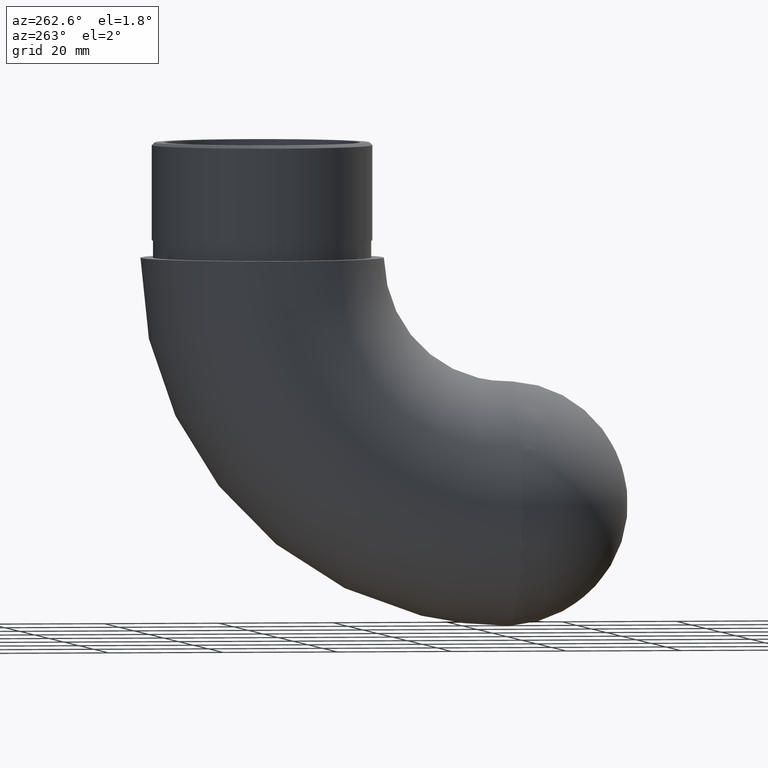
[diagram: clean part render]
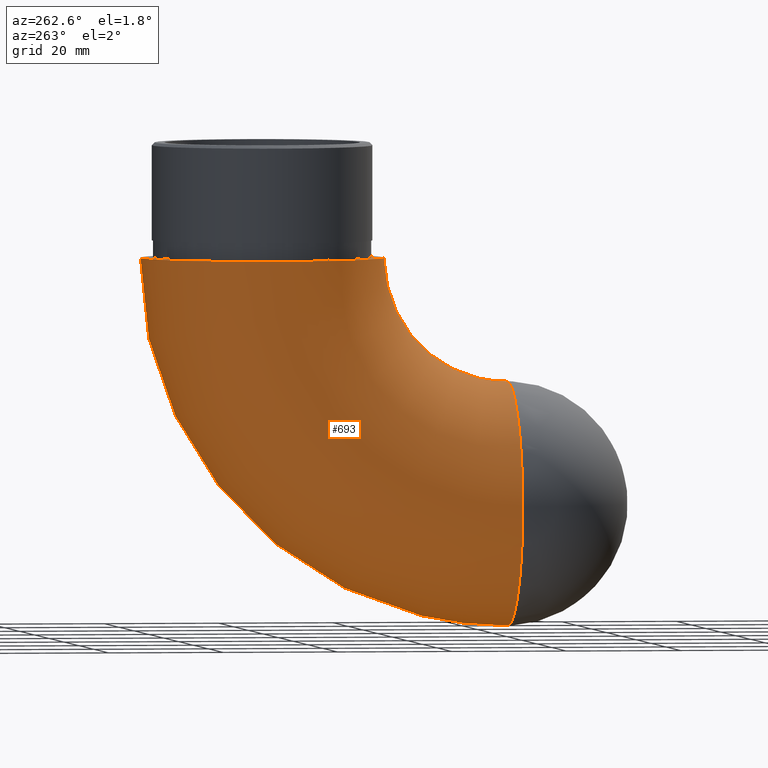
[diagram: same view with one face highlighted and labeled with its STEP entity id]
A machine part, auxiliary view. The second image highlights one B-rep face of the part: STEP entity #693.
In plain terms, the highlighted toroidal blend (fillet) surface has major radius 42.8 mm and minor (blend) radius 21.2 mm.
Its self-contained STEP definition (entity closure, byte-faithful):
#224 = AXIS2_PLACEMENT_3D ( 'NONE', #6626, #11305, #1149 ) ;
#251 = VERTEX_POINT ( 'NONE', #6071 ) ;
#364 = DIRECTION ( 'NONE',  ( 0.0000000000000000000, -1.000000000000000000, -1.608122649676636600E-016 ) ) ;
#522 = EDGE_LOOP ( 'NONE', ( #3808 ) ) ;
#693 = ADVANCED_FACE ( 'NONE', ( #8839, #5685 ), #2860, .T. ) ;
#924 = ORIENTED_EDGE ( 'NONE', *, *, #6215, .T. ) ;
#1149 = DIRECTION ( 'NONE',  ( 0.0000000000000000000, 0.0000000000000000000, 1.000000000000000000 ) ) ;
#2860 = TOROIDAL_SURFACE ( 'NONE', #224, 42.80000000000000400, 21.19999999999999900 ) ;
#3418 = CARTESIAN_POINT ( 'NONE',  ( 0.0000000000000000000, 0.0000000000000000000, -42.80000000000000400 ) ) ;
#3522 = AXIS2_PLACEMENT_3D ( 'NONE', #3418, #6221, #9793 ) ;
#3808 = ORIENTED_EDGE ( 'NONE', *, *, #10788, .F. ) ;
#3831 = AXIS2_PLACEMENT_3D ( 'NONE', #3930, #5715, #364 ) ;
#3930 = CARTESIAN_POINT ( 'NONE',  ( 0.0000000000000000000, 42.80000000000000400, 6.882764940616005400E-015 ) ) ;
#4373 = EDGE_LOOP ( 'NONE', ( #924 ) ) ;
#5640 = VERTEX_POINT ( 'NONE', #10746 ) ;
#5685 = FACE_OUTER_BOUND ( 'NONE', #4373, .T. ) ;
#5715 = DIRECTION ( 'NONE',  ( 0.0000000000000000000, -1.608122649676636600E-016, 1.000000000000000000 ) ) ;
#6071 = CARTESIAN_POINT ( 'NONE',  ( 0.0000000000000000000, 0.0000000000000000000, -21.60000000000000500 ) ) ;
#6142 = CIRCLE ( 'NONE', #3522, 21.19999999999999900 ) ;
#6215 = EDGE_CURVE ( 'NONE', #251, #251, #6142, .T. ) ;
#6221 = DIRECTION ( 'NONE',  ( 0.0000000000000000000, 1.000000000000000000, 0.0000000000000000000 ) ) ;
#6626 = CARTESIAN_POINT ( 'NONE',  ( 0.0000000000000000000, 0.0000000000000000000, 0.0000000000000000000 ) ) ;
#8839 = FACE_OUTER_BOUND ( 'NONE', #522, .T. ) ;
#9233 = CIRCLE ( 'NONE', #3831, 21.19999999999999900 ) ;
#9793 = DIRECTION ( 'NONE',  ( 0.0000000000000000000, 0.0000000000000000000, 1.000000000000000000 ) ) ;
#10746 = CARTESIAN_POINT ( 'NONE',  ( 0.0000000000000000000, 21.60000000000000500, 3.473544923301535900E-015 ) ) ;
#10788 = EDGE_CURVE ( 'NONE', #5640, #5640, #9233, .T. ) ;
#11305 = DIRECTION ( 'NONE',  ( -1.000000000000000000, -0.0000000000000000000, -0.0000000000000000000 ) ) ;